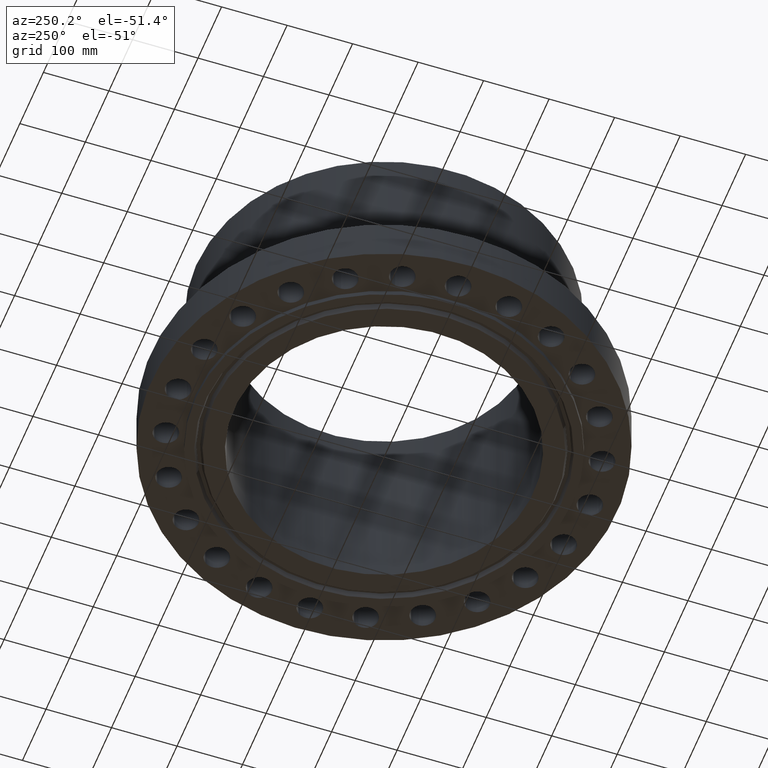
[diagram: clean part render]
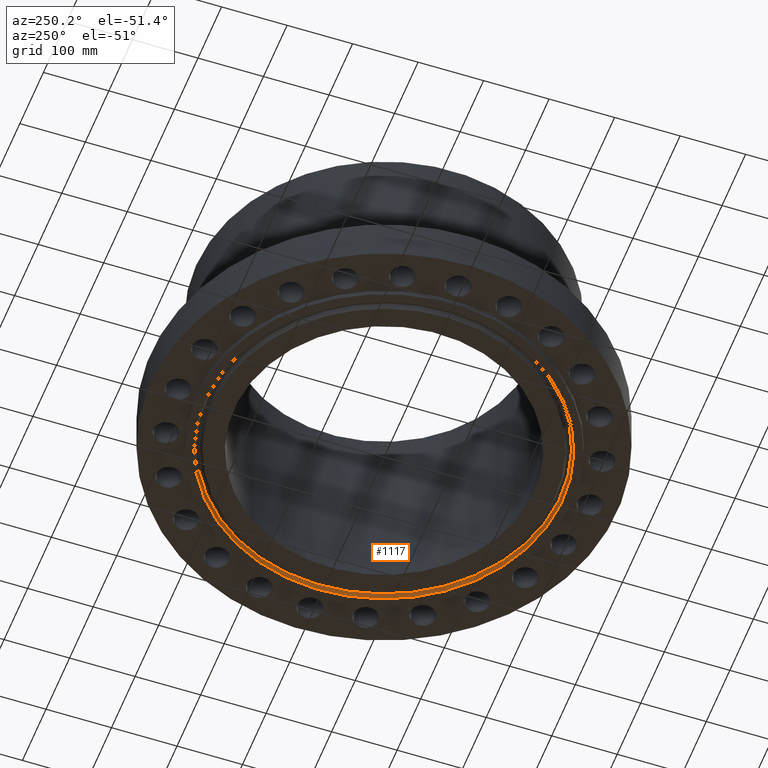
[diagram: same view with one face highlighted and labeled with its STEP entity id]
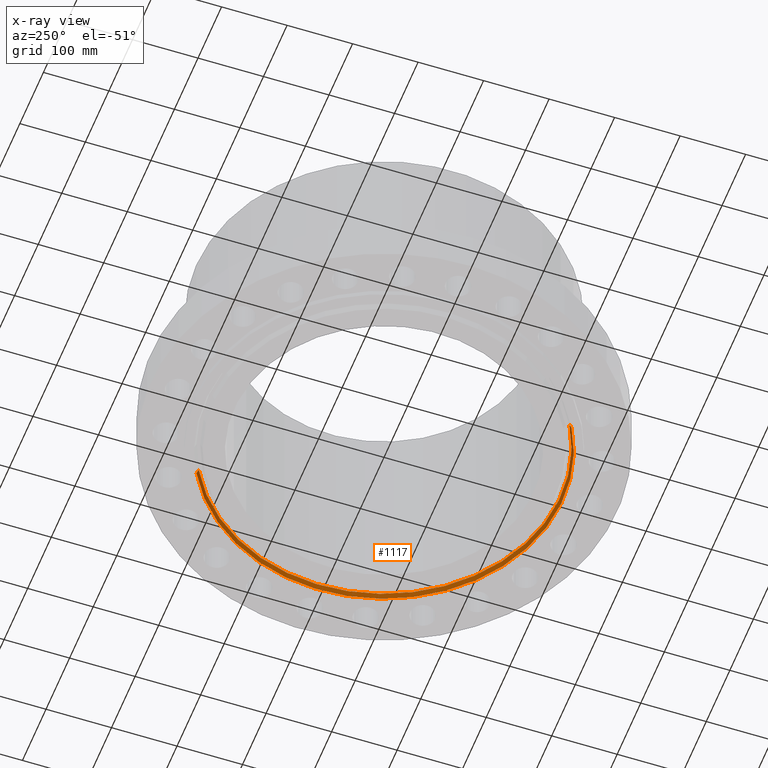
[diagram: x-ray of the same camera — body ghosted, the highlighted face saturated]
A machine part, auxiliary view. The second image highlights one B-rep face of the part: STEP entity #1117.
The next image is the same camera in x-ray: the body ghosted, the highlighted face saturated — about 0% of this face is hidden behind the body in this view.
In plain terms, the highlighted conical surface has half-angle 23 deg.
Its self-contained STEP definition (entity closure, byte-faithful):
#1065=AXIS2_PLACEMENT_3D('Circle Axis2P3D',#1063,#1064,$) ;
#1078=AXIS2_PLACEMENT_3D('Cone Axis2P3D',#1075,#1076,#1077) ;
#1108=AXIS2_PLACEMENT_3D('Circle Axis2P3D',#1106,#1107,$) ;
#1041=CARTESIAN_POINT('Vertex',(-5.08654032057,-9.31084960281,-0.0188873350169)) ;
#1048=CARTESIAN_POINT('Vertex',(5.08654032057,9.31084960281,-0.0188873350169)) ;
#1063=CARTESIAN_POINT('Axis2P3D Location',(0.,0.,-0.0188873350169)) ;
#1075=CARTESIAN_POINT('Axis2P3D Location',(0.,0.,-0.0188873350169)) ;
#1080=CARTESIAN_POINT('Line Origine',(-5.11646688237,-9.36562980673,-0.165943667509)) ;
#1084=CARTESIAN_POINT('Vertex',(-5.14639344417,-9.42041001065,-0.313000000001)) ;
#1091=CARTESIAN_POINT('Vertex',(5.14639344417,9.42041001065,-0.313000000001)) ;
#1094=CARTESIAN_POINT('Line Origine',(5.11646688237,9.36562980673,-0.165943667509)) ;
#1106=CARTESIAN_POINT('Axis2P3D Location',(0.,0.,-0.313000000001)) ;
#1064=DIRECTION('Axis2P3D Direction',(0.,0.,-0.0393700787402)) ;
#1076=DIRECTION('Axis2P3D Direction',(0.,0.,-0.0393700787402)) ;
#1077=DIRECTION('Axis2P3D XDirection',(0.0188750212049,0.0345504945626,0.)) ;
#1081=DIRECTION('Vector Direction',(-0.00737505833565,-0.0134999537303,-0.0362403485611)) ;
#1095=DIRECTION('Vector Direction',(0.00737505833565,0.0134999537303,-0.0362403485611)) ;
#1107=DIRECTION('Axis2P3D Direction',(0.,0.,-0.0393700787402)) ;
#1082=VECTOR('Line Direction',#1081,0.0393700787402) ;
#1096=VECTOR('Line Direction',#1095,0.0393700787402) ;
#1112=ORIENTED_EDGE('',*,*,#1067,.F.) ;
#1113=ORIENTED_EDGE('',*,*,#1098,.T.) ;
#1114=ORIENTED_EDGE('',*,*,#1110,.T.) ;
#1115=ORIENTED_EDGE('',*,*,#1086,.F.) ;
#1117=ADVANCED_FACE('PartBody',(#1116),#1079,.F.) ;
#1066=CIRCLE('generated circle',#1065,10.6096565806) ;
#1109=CIRCLE('generated circle',#1108,10.7345) ;
#1079=CONICAL_SURFACE('Cone',#1078,10.6096565806,0.401425727959) ;
#1067=EDGE_CURVE('',#1049,#1042,#1066,.T.) ;
#1086=EDGE_CURVE('',#1042,#1085,#1083,.T.) ;
#1098=EDGE_CURVE('',#1049,#1092,#1097,.T.) ;
#1110=EDGE_CURVE('',#1092,#1085,#1109,.T.) ;
#1111=EDGE_LOOP('',(#1112,#1113,#1114,#1115)) ;
#1116=FACE_OUTER_BOUND('',#1111,.T.) ;
#1083=LINE('Line',#1080,#1082) ;
#1097=LINE('Line',#1094,#1096) ;
#1042=VERTEX_POINT('',#1041) ;
#1049=VERTEX_POINT('',#1048) ;
#1085=VERTEX_POINT('',#1084) ;
#1092=VERTEX_POINT('',#1091) ;